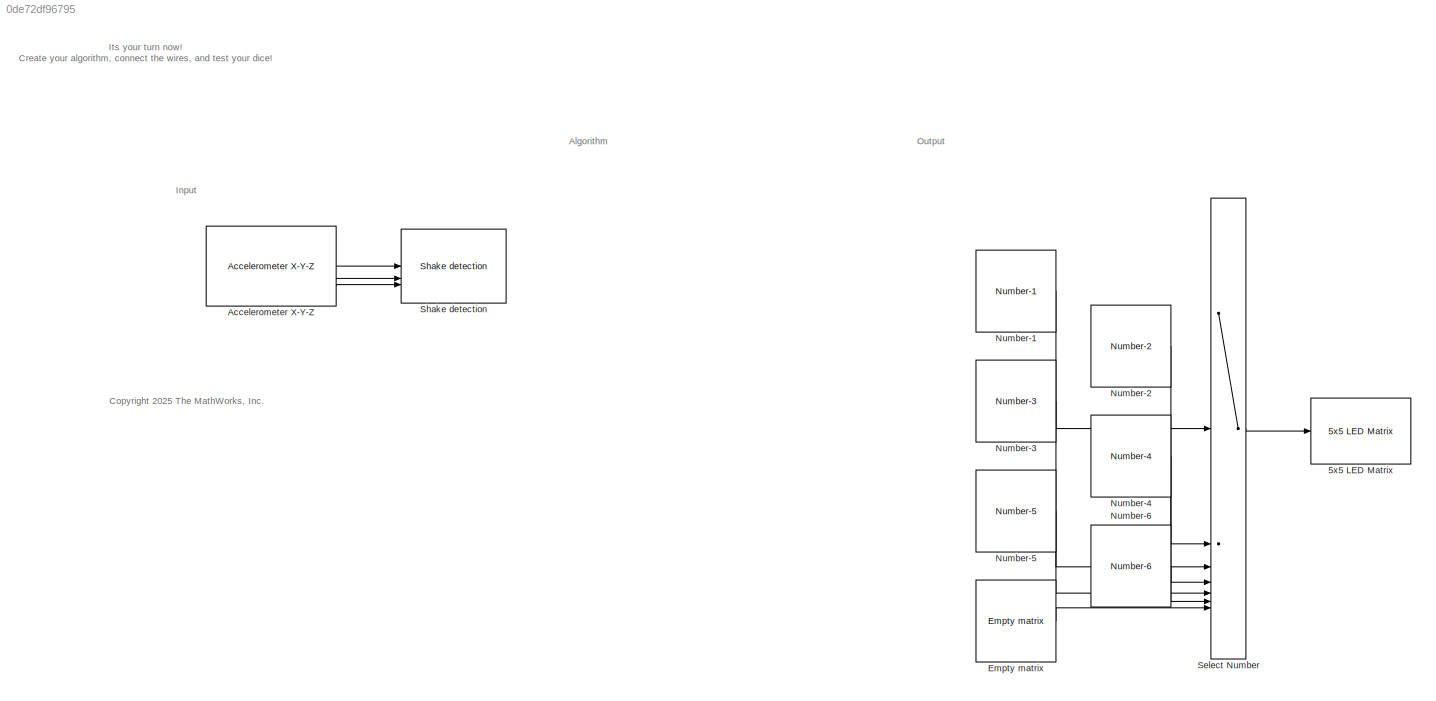
MODEL slx_0de72df96795
KIND model
CONFIG AbsTol = auto
CONFIG EnableMultiTasking = off
CONFIG FixedStep = auto
CONFIG MaxStep = auto
CONFIG MinStep = auto
CONFIG RelTol = 1e-3
CONFIG SampleTimeConstraint = Unconstrained
CONFIG SolverName = FixedStepAuto
CONFIG StartTime = 0.0
CONFIG StopTime = inf
BLOCK [Reference] 5x5 LED Matrix  REF=microbitledlib/5x5 LED Matrix
  SourceBlock = microbitledlib/5x5 LED Matrix
  SourceType = BBC micro:bit 5x5 LED Matrix
BLOCK [Reference] Accelerometer X-Y-Z  REF=microbitaccellib/Accelerometer X-Y-Z
  SourceBlock = microbitaccellib/Accelerometer X-Y-Z
  SourceType = BBC micro:bit Accelerometer X-Y-Z
BLOCK [Reference] Empty matrix  REF=microbitledlib/LED Images/Empty matrix
  SourceBlock = microbitledlib/LED Images/Empty matrix
  SourceType = Output a 5x5 Matrix
BLOCK [Reference] Number-1  REF=microbitledlib/LED Images/Number-1
  SourceBlock = microbitledlib/LED Images/Number-1
BLOCK [Reference] Number-2  REF=microbitledlib/LED Images/Number-2
  SourceBlock = microbitledlib/LED Images/Number-2
BLOCK [Reference] Number-3  REF=microbitledlib/LED Images/Number-3
  SourceBlock = microbitledlib/LED Images/Number-3
BLOCK [Reference] Number-4  REF=microbitledlib/LED Images/Number-4
  SourceBlock = microbitledlib/LED Images/Number-4
BLOCK [Reference] Number-5  REF=microbitledlib/LED Images/Number-5
  SourceBlock = microbitledlib/LED Images/Number-5
BLOCK [Reference] Number-6  REF=microbitledlib/LED Images/Number-6
  SourceBlock = microbitledlib/LED Images/Number-6
BLOCK [MultiPortSwitch] Select Number
  DiagnosticForDefault = None
  InputSameDT = off
  Inputs = 7
  NameLocation = top
  SaturateOnIntegerOverflow = off
BLOCK [Reference] Shake detection  REF=microbitaccellib/Shake detection
  SourceBlock = microbitaccellib/Shake detection
  SourceType = BBC micro:bit Accelerometer Shake detection
ANNOTATION (root): Its your turn now! Create your algorithm, connect the wires, and test your dice!
ANNOTATION (root): <copyright redacted>
ANNOTATION (root): Algorithm
ANNOTATION (root): Input
ANNOTATION (root): Output
LINE Accelerometer X-Y-Z:1 -> Shake detection:1
LINE Accelerometer X-Y-Z:2 -> Shake detection:2
LINE Accelerometer X-Y-Z:3 -> Shake detection:3
LINE Empty matrix:1 -> Select Number:8
LINE Number-1:1 -> Select Number:2
LINE Number-2:1 -> Select Number:3
LINE Number-3:1 -> Select Number:4
LINE Number-4:1 -> Select Number:5
LINE Number-5:1 -> Select Number:6
LINE Number-6:1 -> Select Number:7
LINE Select Number:1 -> 5x5 LED Matrix:1
